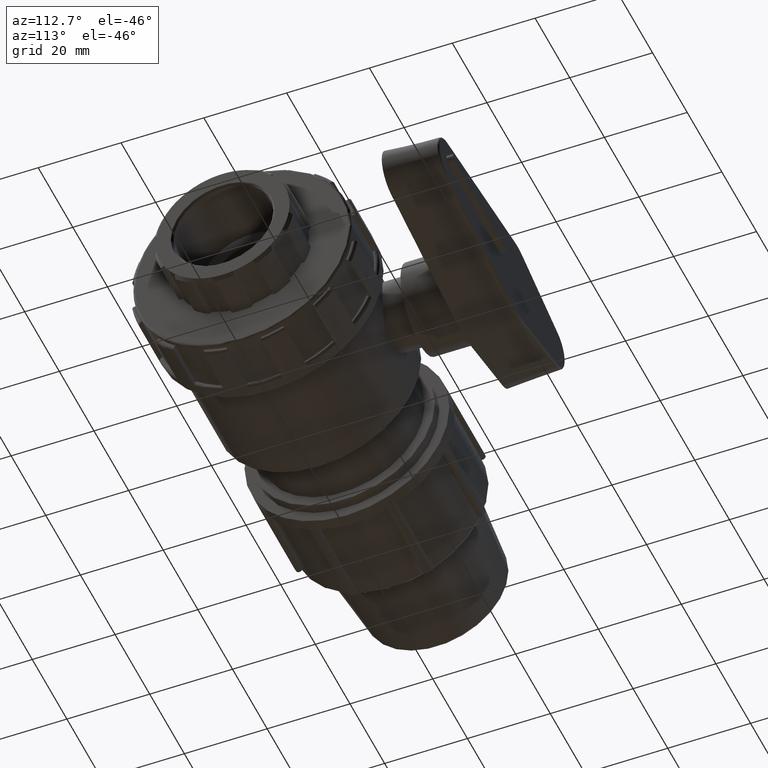
[diagram: clean part render]
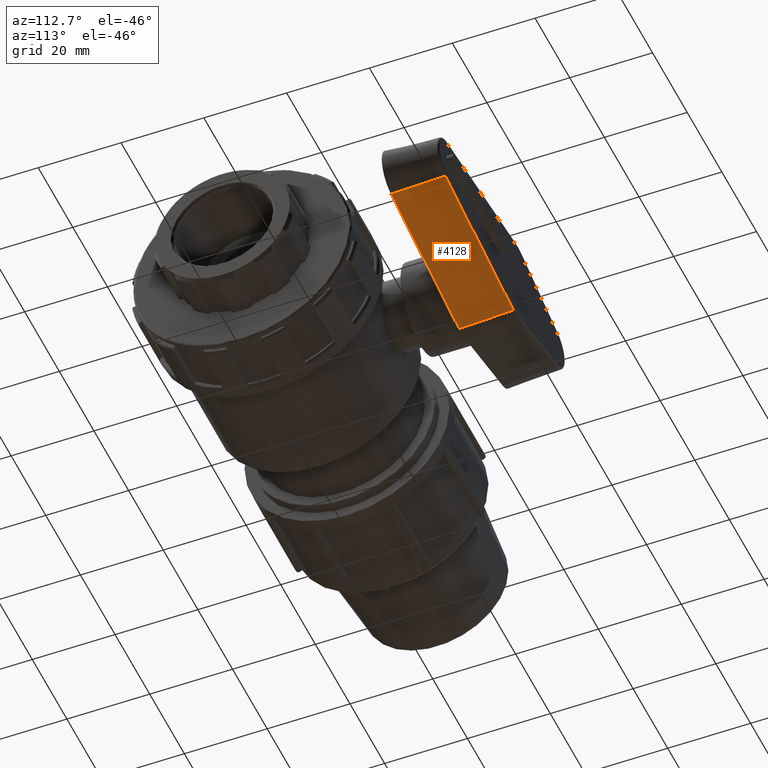
[diagram: same view with one face highlighted and labeled with its STEP entity id]
A machine part, auxiliary view. The second image highlights one B-rep face of the part: STEP entity #4128.
In plain terms, the highlighted planar face has unit normal (0.137, 0.0523, -0.9892).
Its self-contained STEP definition (entity closure, byte-faithful):
#142=PLANE('',#4525);
#476=FACE_OUTER_BOUND('',#732,.T.);
#732=EDGE_LOOP('',(#3302,#3303,#3304,#3305));
#991=LINE('',#7536,#1235);
#996=LINE('',#7566,#1240);
#998=LINE('',#7572,#1242);
#999=LINE('',#7573,#1243);
#1235=VECTOR('',#5395,39.7210271770507);
#1240=VECTOR('',#5432,13.0608031018627);
#1242=VECTOR('',#5438,13.0608031018627);
#1243=VECTOR('',#5439,39.7210271770507);
#1842=VERTEX_POINT('',#7526);
#1844=VERTEX_POINT('',#7532);
#1854=VERTEX_POINT('',#7565);
#1856=VERTEX_POINT('',#7571);
#2378=EDGE_CURVE('',#1842,#1844,#991,.T.);
#2393=EDGE_CURVE('',#1844,#1854,#996,.T.);
#2396=EDGE_CURVE('',#1842,#1856,#998,.T.);
#2397=EDGE_CURVE('',#1856,#1854,#999,.T.);
#3302=ORIENTED_EDGE('',*,*,#2378,.F.);
#3303=ORIENTED_EDGE('',*,*,#2396,.T.);
#3304=ORIENTED_EDGE('',*,*,#2397,.T.);
#3305=ORIENTED_EDGE('',*,*,#2393,.F.);
#4128=ADVANCED_FACE('',(#476),#142,.T.);
#4525=AXIS2_PLACEMENT_3D('',#7570,#5436,#5437);
#5395=DIRECTION('',(-0.990549306160865,-3.24131137982478E-16,-0.13715710723192));
#5432=DIRECTION('',(0.00717824836249887,-0.998629534754574,-0.0518413451437134));
#5436=DIRECTION('center_axis',(0.136969138183296,0.0523359562429438,-0.989191792762891));
#5437=DIRECTION('ref_axis',(0.990549306160865,0.,0.13715710723192));
#5438=DIRECTION('',(0.00717824836249856,-0.998629534754574,-0.0518413451437134));
#5439=DIRECTION('',(-0.990549306160865,-3.24131137982478E-16,-0.13715710723192));
#7526=CARTESIAN_POINT('',(40.857649743236,53.5429037251342,-5.47175018941137));
#7532=CARTESIAN_POINT('',(1.51201383301156,53.5429037251342,-10.9197713732961));
#7536=CARTESIAN_POINT('',(21.1848317881238,53.5429037251342,-8.19576078135375));
#7565=CARTESIAN_POINT('',(1.60576752149041,40.5,-11.5968609747539));
#7566=CARTESIAN_POINT('',(1.50872817955112,54.,-10.8960423677695));
#7570=CARTESIAN_POINT('Origin',(40.8543640897755,54.,-5.44802118388477));
#7571=CARTESIAN_POINT('',(40.9514034317148,40.5,-6.14883979086911));
#7572=CARTESIAN_POINT('',(40.8543640897755,54.,-5.44802118388476));
#7573=CARTESIAN_POINT('',(40.9514034317148,40.5,-6.14883979086912));